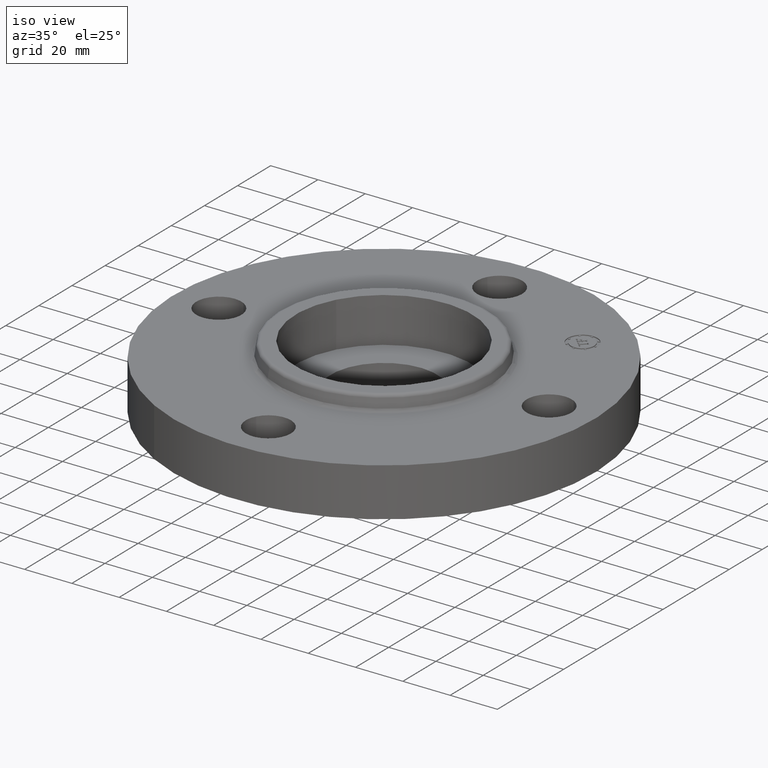
[diagram: clean part render]
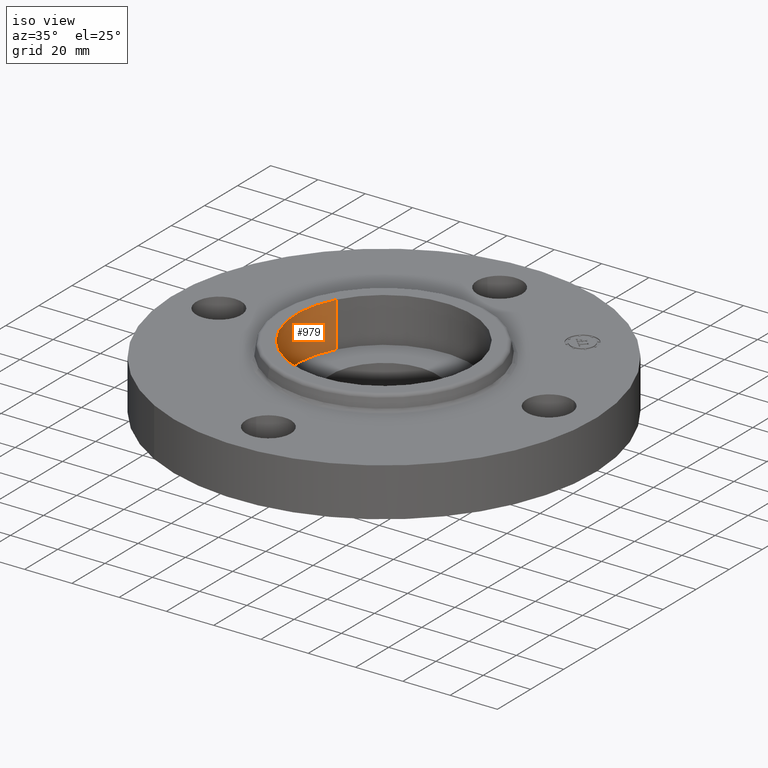
[diagram: same view with one face highlighted and labeled with its STEP entity id]
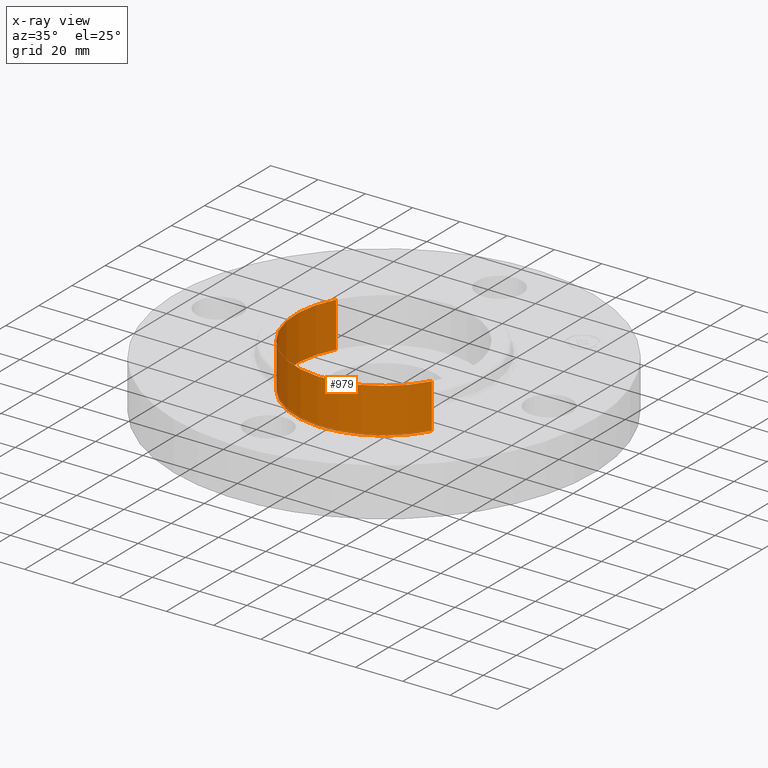
[diagram: x-ray of the same camera — body ghosted, the highlighted face saturated]
A machine part, iso view. The second image highlights one B-rep face of the part: STEP entity #979.
The next image is the same camera in x-ray: the body ghosted, the highlighted face saturated — about 3% of this face is hidden behind the body in this view.
In plain terms, the highlighted cylindrical surface (partial cylindrical patch) has radius 37.338 mm, axis along (0, 0, -1).
Its self-contained STEP definition (entity closure, byte-faithful):
#51=AXIS2_PLACEMENT_3D('Circle Axis2P3D',#49,#50,$) ;
#914=AXIS2_PLACEMENT_3D('Circle Axis2P3D',#912,#913,$) ;
#954=AXIS2_PLACEMENT_3D('Cylinder Axis2P3D',#951,#952,#953) ;
#44=CARTESIAN_POINT('Vertex',(-1.29004636598,0.704755541751,0.310000000001)) ;
#46=CARTESIAN_POINT('Vertex',(1.29004636598,-0.704755541751,0.310000000001)) ;
#49=CARTESIAN_POINT('Axis2P3D Location',(1.04902962957E-016,-3.49676543189E-016,0.310000000001)) ;
#907=CARTESIAN_POINT('Vertex',(-1.29004636598,0.704755541751,1.06)) ;
#909=CARTESIAN_POINT('Vertex',(1.29004636598,-0.704755541751,1.06)) ;
#912=CARTESIAN_POINT('Axis2P3D Location',(2.79741234551E-016,-5.59482469102E-016,1.06)) ;
#951=CARTESIAN_POINT('Axis2P3D Location',(1.04902962957E-016,-3.49676543189E-016,1.05606299213)) ;
#956=CARTESIAN_POINT('Line Origine',(-1.29004636598,0.704755541751,0.685000000003)) ;
#961=CARTESIAN_POINT('Line Origine',(1.29004636598,-0.704755541751,0.685000000003)) ;
#50=DIRECTION('Axis2P3D Direction',(0.,0.,-0.0393700787402)) ;
#913=DIRECTION('Axis2P3D Direction',(0.,0.,-0.0393700787402)) ;
#952=DIRECTION('Axis2P3D Direction',(0.,0.,-0.0393700787402)) ;
#953=DIRECTION('Axis2P3D XDirection',(0.0345504945626,-0.0188750212049,0.)) ;
#957=DIRECTION('Vector Direction',(0.,0.,-0.0393700787402)) ;
#962=DIRECTION('Vector Direction',(0.,0.,-0.0393700787402)) ;
#958=VECTOR('Line Direction',#957,0.0393700787402) ;
#963=VECTOR('Line Direction',#962,0.0393700787402) ;
#974=ORIENTED_EDGE('',*,*,#916,.F.) ;
#975=ORIENTED_EDGE('',*,*,#965,.F.) ;
#976=ORIENTED_EDGE('',*,*,#53,.T.) ;
#977=ORIENTED_EDGE('',*,*,#960,.T.) ;
#979=ADVANCED_FACE('PartBody',(#978),#955,.F.) ;
#52=CIRCLE('generated circle',#51,1.47000000001) ;
#915=CIRCLE('generated circle',#914,1.47000000001) ;
#955=CYLINDRICAL_SURFACE('generated cylinder',#954,1.47000000001) ;
#53=EDGE_CURVE('',#47,#45,#52,.T.) ;
#916=EDGE_CURVE('',#910,#908,#915,.T.) ;
#960=EDGE_CURVE('',#45,#908,#959,.F.) ;
#965=EDGE_CURVE('',#47,#910,#964,.F.) ;
#973=EDGE_LOOP('',(#974,#975,#976,#977)) ;
#978=FACE_OUTER_BOUND('',#973,.T.) ;
#959=LINE('Line',#956,#958) ;
#964=LINE('Line',#961,#963) ;
#45=VERTEX_POINT('',#44) ;
#47=VERTEX_POINT('',#46) ;
#908=VERTEX_POINT('',#907) ;
#910=VERTEX_POINT('',#909) ;